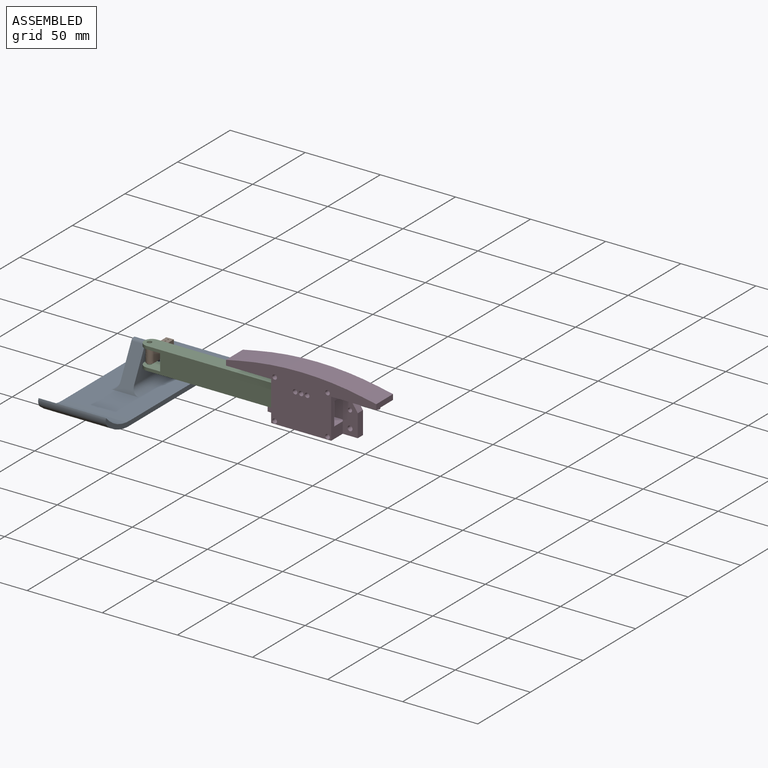
[diagram: assembled view]
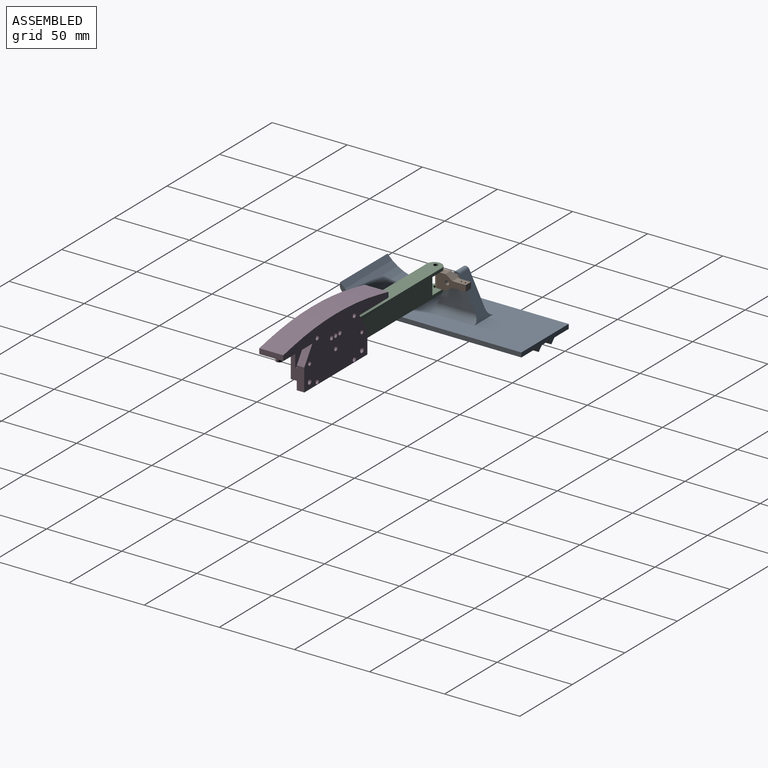
[diagram: assembled view, second angle]
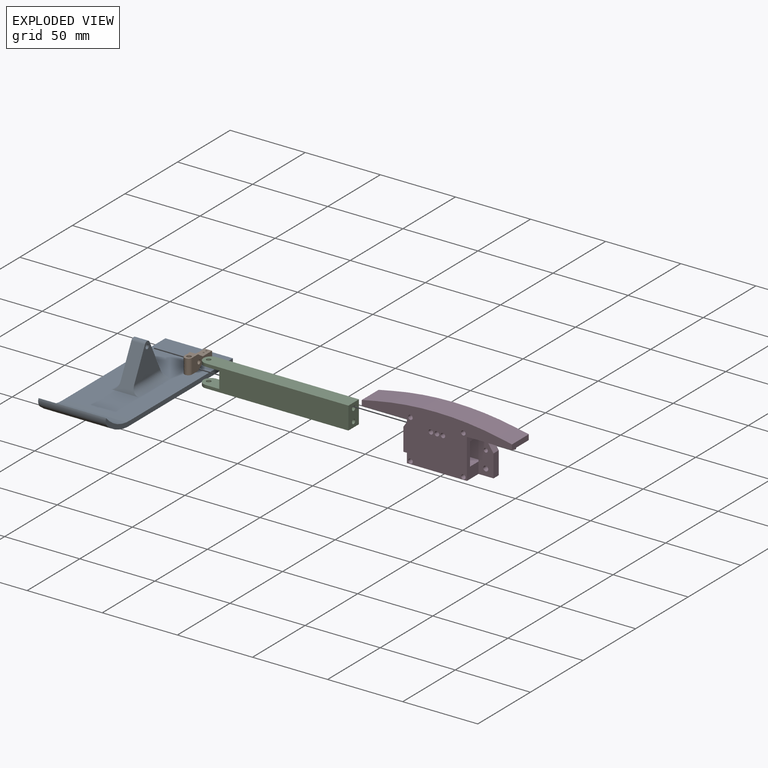
[diagram: exploded view]
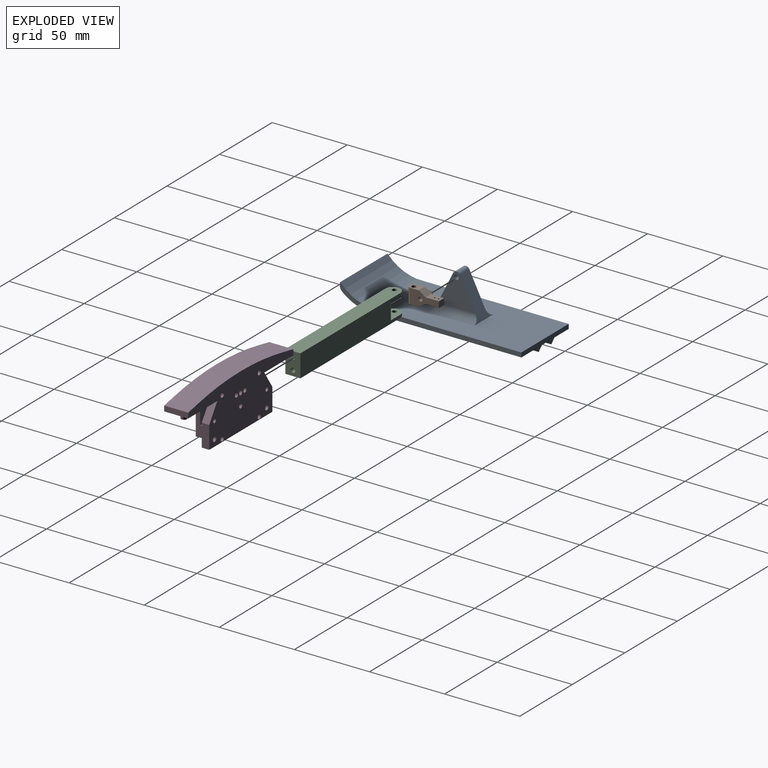
[diagram: exploded view, second angle]
ASSEMBLY  parts=4 mates=3
PART A: 28 faces, bbox 45x120.9x32.9 mm
  f0: plane 96.23x6mm, normal (0,0,-1), area 577.4mm2, adj f6,f8,f13,f16
  f1: plane 96.23x13.5mm, normal (0,0,-1), area 1299.2mm2, adj f6,f8,f14,f25
  f2: plane 25x21.91mm, normal (1,0,0), area 299.9mm2, adj f4,f5,f12,f17,f27
  f3: plane 25x21.91mm, normal (-1,0,0), area 299.9mm2, adj f4,f5,f12,f18,f27
  f4: plane 25.53x19mm, normal (0,0.89,0.45), area 268.9mm2, adj f2,f3,f9,f17,f18,f27
  f5: plane 25.53x19mm, normal (0,-0.89,0.45), area 268.9mm2, adj f2,f3,f9,f17,f18,f27
  f6: cylinder r=32.22mm len=45mm, axis (-1,0,0), area 1067mm2, adj f0,f1,f7,f11,f13,f14,f15,f16
  f7: plane 96.23x13.5mm, normal (0,0,-1), area 1299.2mm2, adj f6,f8,f15,f26
  f8: plane 45x6mm, normal (0,1,0), area 153mm2, adj f0,f1,f7,f9,f13,f14,f15,f16
  f9: plane 96.81x45mm, normal (0,0,1), area 3786.5mm2, adj f4,f5,f8,f10,f17,f18,f25,f26
  f10: cylinder r=29.74mm len=45mm, axis (-1,0,0), area 1202.7mm2, adj f9,f11,f25,f26
  f11: cylinder r=5mm len=45mm, axis (1,0,0), area 277.7mm2, adj f6,f10,f25,f26
  f12: cylinder r=1.5mm len=9mm, axis (-1,0,0), area 84.8mm2, adj f2,f3
  f13: plane 98.72x3mm, normal (0.71,0,-0.71), area 413mm2, adj f0,f6,f8,f14,f24
  f14: plane 98.72x3mm, normal (-0.71,0,-0.71), area 413mm2, adj f1,f6,f8,f13,f23
  f15: plane 98.72x3mm, normal (0.71,0,-0.71), area 413mm2, adj f6,f7,f8,f16,f22
  f16: plane 98.72x3mm, normal (-0.71,0,-0.71), area 413mm2, adj f0,f6,f8,f15,f21
  f17: cylinder r=5mm len=30mm, axis (0,1,0), area 221.3mm2, adj f2,f4,f5,f9
  f18: cylinder r=5mm len=30mm, axis (0,-1,0), area 221.3mm2, adj f3,f4,f5,f9
  f19: plane 2.29x1.14mm, normal (0,-0.73,-0.68), area 1.8mm2, adj f6,f21,f22
  f20: plane 2.29x1.14mm, normal (0,-0.73,-0.68), area 1.8mm2, adj f6,f23,f24
  f21: plane 4.6x3mm, normal (-0.41,-0.42,-0.81), area 8.9mm2, adj f6,f16,f19,f22
  f22: plane 4.6x3mm, normal (0.41,-0.42,-0.81), area 8.9mm2, adj f6,f15,f19,f21
  f23: plane 4.6x3mm, normal (-0.41,-0.42,-0.81), area 8.9mm2, adj f6,f14,f20,f24
  f24: plane 4.6x3mm, normal (0.41,-0.42,-0.81), area 8.9mm2, adj f6,f13,f20,f23
  f25: plane 120.92x13.17mm, normal (-1,0,0), area 371.1mm2, adj f1,f6,f8,f9,f10,f11
  f26: plane 120.92x13.17mm, normal (1,0,0), area 371.1mm2, adj f6,f7,f8,f9,f10,f11
  f27: cylinder r=2.5mm len=9mm, axis (-1,0,0), area 49.8mm2, adj f2,f3,f4,f5
PART B: 20 faces, bbox 10.1x23.8x22.7 mm
  f0: plane 3.21x1.91mm, normal (-1,0,0), area 2.4mm2, adj f2,f17,f18
  f1: plane 3.21x1.91mm, normal (-1,0,0), area 2.4mm2, adj f4,f17,f18
  f2: plane 8.11x5.33mm, normal (0,0,1), area 31.3mm2, adj f0,f5,f8,f10,f17,f18
  f3: plane 5x4mm, normal (0,-1,0), area 20mm2, adj f5,f6,f9,f11
  f4: plane 8.11x5.33mm, normal (0,0,-1), area 31.3mm2, adj f1,f5,f8,f12,f17,f18
  f5: plane 19.09x10mm, normal (1,0,0), area 117.6mm2, adj f2,f3,f4,f7,f9,f10,f11,f12
  f6: plane 5.82x4mm, normal (-1,0,0), area 22.5mm2, adj f3,f9,f11,f17
  f7: cylinder r=1.4mm len=9mm, axis (-1,0,0), area 79.2mm2, adj f5,f16
  f8: cylinder r=1.5mm len=10mm, axis (0,0,1), area 94.2mm2, adj f2,f4
  f9: plane 8.89x5.88mm, normal (0,0,1), area 43.7mm2, adj f3,f5,f6,f10,f14,f15,f17
  f10: plane 6.24x4.6mm, normal (0,-0.55,0.84), area 32.6mm2, adj f2,f5,f9,f17
  f11: plane 8.89x5.88mm, normal (0,0,-1), area 43.7mm2, adj f3,f5,f6,f12,f14,f15,f17
  f12: plane 6.33x4.69mm, normal (0,-0.55,-0.84), area 32.6mm2, adj f4,f5,f11,f17
  f13: plane 3.58x0mm, normal (0,1,0), area 0mm2, adj f18,f19
  f14: cylinder r=0.5mm len=4mm, axis (0,0,1), area 12.6mm2, adj f9,f11
  f15: cylinder r=0.5mm len=4mm, axis (0,0,1), area 12.6mm2, adj f9,f11
  f16: plane 4x4mm, normal (-1,0,0), area 6.4mm2, adj f7,f17
  f17: torus R=6.9mm, axis (1,0,0), area 115.5mm2, adj f0,f1,f2,f4,f6,f9,f10,f11
  f18: cylinder r=2.5mm len=10mm, axis (0,0,-1), area 64.5mm2, adj f0,f1,f2,f4,f5,f13,f19
  f19: bspline ~6.96x2.7mm, area 13.9mm2, adj f13,f17,f18
PART C: 16 faces, bbox 10x100x15 mm
  f0: plane 95x15mm, normal (1,0,0), area 1326mm2, adj f1,f2,f3,f4,f5,f7,f8,f15
  f1: plane 14x10mm, normal (0,0,1), area 122.2mm2, adj f0,f6,f8,f10,f15
  f2: plane 100x10mm, normal (0,0,-1), area 982.2mm2, adj f0,f3,f6,f8,f10
  f3: plane 15x10mm, normal (0,1,0), area 135.9mm2, adj f0,f2,f4,f6,f11,f13
  f4: plane 100x10mm, normal (0,0,1), area 982.2mm2, adj f0,f3,f6,f7,f9
  f5: plane 14x10mm, normal (0,0,-1), area 122.2mm2, adj f0,f6,f7,f9,f15
  f6: plane 95x15mm, normal (-1,0,0), area 1326mm2, adj f1,f2,f3,f4,f5,f7,f8,f15
  f7: cylinder r=5mm len=10mm, axis (0,0,1), area 31.4mm2, adj f0,f4,f5,f6
  f8: cylinder r=5mm len=10mm, axis (0,0,1), area 31.4mm2, adj f0,f1,f2,f6
  f9: cylinder r=1.5mm len=3mm, axis (0,0,1), area 18.8mm2, adj f4,f5
  f10: cylinder r=1.5mm len=3mm, axis (0,0,1), area 18.8mm2, adj f1,f2
  f11: cylinder r=1.5mm len=25mm, axis (0,1,0), area 235.6mm2, adj f3,f12
  f12: plane 3x3mm, normal (0,1,0), area 7.1mm2, adj f11
  f13: cylinder r=1.5mm len=25mm, axis (0,1,0), area 235.6mm2, adj f3,f14
  f14: plane 3x3mm, normal (0,1,0), area 7.1mm2, adj f13
  f15: plane 11x10mm, normal (0,-1,0), area 110mm2, adj f0,f1,f5,f6
PART D: 53 faces, bbox 100x16x35.9 mm
  f0: plane 26.5x11mm, normal (-1,0,0), area 151.5mm2, adj f2,f5,f6,f10,f11,f31,f39,f46
  f1: plane 26.5x11mm, normal (1,0,0), area 151.5mm2, adj f2,f6,f7,f9,f12,f37,f38,f40
  f2: plane 100x35.9mm, normal (0,1,0), area 1748.9mm2, adj f0,f1,f6,f19,f20,f21,f22,f23
  f3: plane 100x35.9mm, normal (0,-1,0), area 2155.1mm2, adj f6,f17,f19,f20,f21,f22,f23,f24
  f4: plane 15x10mm, normal (-1,0,0), area 135.9mm2, adj f5,f10,f11,f13,f14,f15
  f5: plane 10x10mm, normal (0,0,1), area 100mm2, adj f0,f4,f11,f15,f26
  f6: plane 60x16mm, normal (0,0,-1), area 740mm2, adj f0,f1,f2,f3,f28,f31,f32,f37
  f7: plane 10x10mm, normal (0,0,1), area 100mm2, adj f1,f8,f12,f16,f34
  f8: plane 15x10mm, normal (1,0,0), area 135.9mm2, adj f7,f9,f12,f13,f14,f16
  f9: plane 15x10mm, normal (0,0,-1), area 105.4mm2, adj f1,f8,f12,f16,f34,f37,f38
  f10: plane 15x10mm, normal (0,0,-1), area 105.4mm2, adj f0,f4,f11,f15,f26,f31,f39
  f11: plane 15x10mm, normal (0,-1,0), area 150mm2, adj f0,f4,f5,f10
  f12: plane 15x10mm, normal (0,-1,0), area 150mm2, adj f1,f7,f8,f9
  f13: cylinder r=1.5mm len=20mm, axis (-1,0,0), area 188.5mm2, adj f4,f8
  f14: cylinder r=1.5mm len=20mm, axis (-1,0,0), area 188.5mm2, adj f4,f8
  f15: plane 15x10mm, normal (0,1,0), area 150mm2, adj f4,f5,f10,f26
  f16: plane 15x10mm, normal (0,1,0), area 150mm2, adj f7,f8,f9,f34
  f17: cylinder r=1.5mm len=13mm, axis (0,-1,0), area 122.5mm2, adj f3,f18
  f18: plane 3x3mm, normal (0,-1,0), area 7.1mm2, adj f17
  f19: cylinder r=1.5mm len=16mm, axis (0,1,0), area 150.8mm2, adj f2,f3
  f20: cylinder r=1.5mm len=16mm, axis (0,1,0), area 150.8mm2, adj f2,f3
  f21: cylinder r=1.5mm len=16mm, axis (0,1,0), area 150.8mm2, adj f2,f3
  f22: cylinder r=1.5mm len=16mm, axis (0,-1,0), area 150.8mm2, adj f2,f3
  f23: cylinder r=1.5mm len=16mm, axis (0,-1,0), area 150.8mm2, adj f2,f3
  f24: cylinder r=1.5mm len=16mm, axis (0,-1,0), area 150.8mm2, adj f2,f3
  f25: cylinder r=1.5mm len=16mm, axis (0,-1,0), area 150.8mm2, adj f2,f3
  f26: plane 15x2mm, normal (1,0,0), area 30mm2, adj f5,f10,f15,f31
  f27: plane 11.5x7.67mm, normal (-0.83,0,0.55), area 70.3mm2, adj f3,f28,f31,f39,f46
  f28: plane 15x5mm, normal (-1,0,0), area 75mm2, adj f3,f6,f27,f31
  f29: cylinder r=1.35mm len=5mm, axis (0,-1,0), area 42.4mm2, adj f3,f31
  f30: cylinder r=1.65mm len=5mm, axis (0,-1,0), area 51.8mm2, adj f3,f31
  f31: plane 22.5x10mm, normal (0,1,0), area 192mm2, adj f0,f6,f10,f26,f27,f28,f29,f30
  f32: plane 15x5mm, normal (1,0,0), area 75mm2, adj f3,f6,f33,f37
  f33: plane 11.5x7.67mm, normal (0.83,0,0.55), area 70.3mm2, adj f3,f32,f37,f38,f40
  f34: plane 15x2mm, normal (-1,0,0), area 30mm2, adj f7,f9,f16,f37
  f35: cylinder r=1.35mm len=5mm, axis (0,-1,0), area 42.4mm2, adj f3,f37
  f36: cylinder r=1.65mm len=5mm, axis (0,-1,0), area 51.8mm2, adj f3,f37
  f37: plane 22.5x10mm, normal (0,1,0), area 192mm2, adj f1,f6,f9,f32,f33,f34,f35,f36
  f38: cylinder r=5mm len=5mm, axis (0,0,-1), area 25.9mm2, adj f1,f9,f33,f40
  f39: cylinder r=5mm len=5mm, axis (0,0,1), area 25.9mm2, adj f0,f10,f27,f46
  f40: plane 30x16mm, normal (0,0,-1), area 413.4mm2, adj f1,f2,f3,f33,f38,f41,f44
  f41: plane 16x3.5mm, normal (1,0,0), area 56mm2, adj f2,f3,f40,f45
  f42: cylinder r=2mm len=4mm, axis (0,0,1), area 25.1mm2, adj f43,f44
  f43: plane 4x4mm, normal (0,0,-1), area 12.6mm2, adj f42
  f44: torus R=4mm, axis (0,0,-1), area 53.8mm2, adj f40,f42
  f45: plane 16x9.4mm, normal (0.2,0,0.98), area 153.3mm2, adj f2,f3,f41,f52
  f46: plane 30x16mm, normal (0,0,-1), area 413.4mm2, adj f0,f2,f3,f27,f39,f47,f50
  f47: plane 16x3.5mm, normal (-1,0,0), area 56mm2, adj f2,f3,f46,f51
  f48: cylinder r=2mm len=4mm, axis (0,0,1), area 25.1mm2, adj f49,f50
  f49: plane 4x4mm, normal (0,0,-1), area 12.6mm2, adj f48
  f50: torus R=4mm, axis (0,0,-1), area 53.8mm2, adj f46,f48
  f51: plane 16x9.4mm, normal (-0.2,0,0.98), area 153.3mm2, adj f2,f3,f47,f52
  f52: cylinder r=207.03mm len=81.2mm, axis (0,-1,0), area 1307.7mm2, adj f2,f3,f45,f51
PLACE A t=(-53.31,37.44,-62.08)mm
PLACE B rot(axis=(-1,0,0),180deg) t=(-32.31,37.44,-38.58)mm
PLACE C rot(axis=(0,0,-1),90deg) t=(-29.81,33.94,-38.08)mm
PLACE D rot(axis=(0,0,1),180deg) t=(77.69,23.94,-38.08)mm
MATE parallel A.f12 <-> B.f7  axis (1,0,0) through (-36.31,37.44,-38.58)mm
MATE parallel D.f13 <-> C.f11  axis (-1,0,0) through (67.69,28.94,-42.08)mm
MATE parallel A.f12 <-> B.f7  axis (1,0,0) through (-36.31,37.44,-38.58)mm
